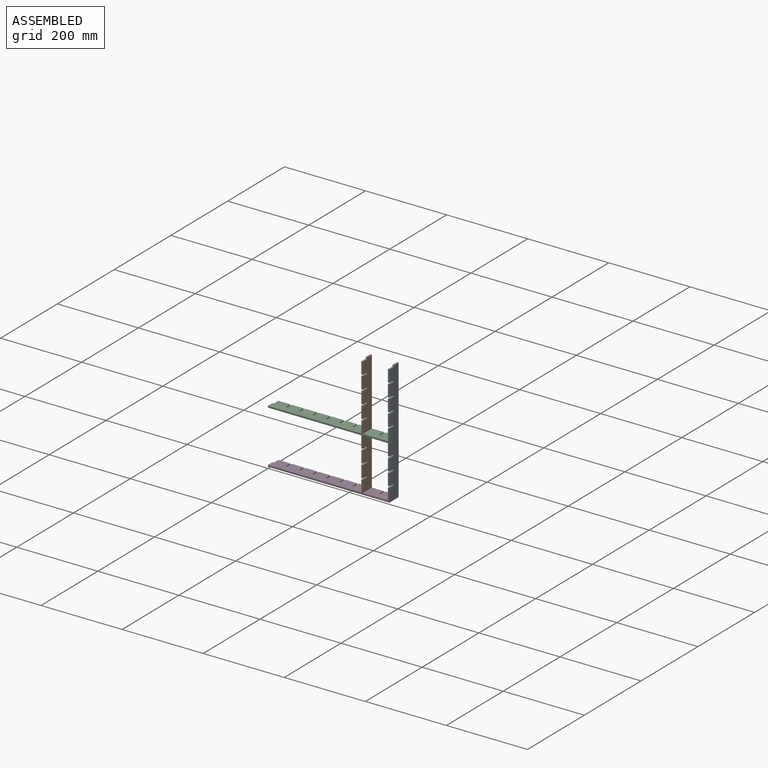
[diagram: assembled view]
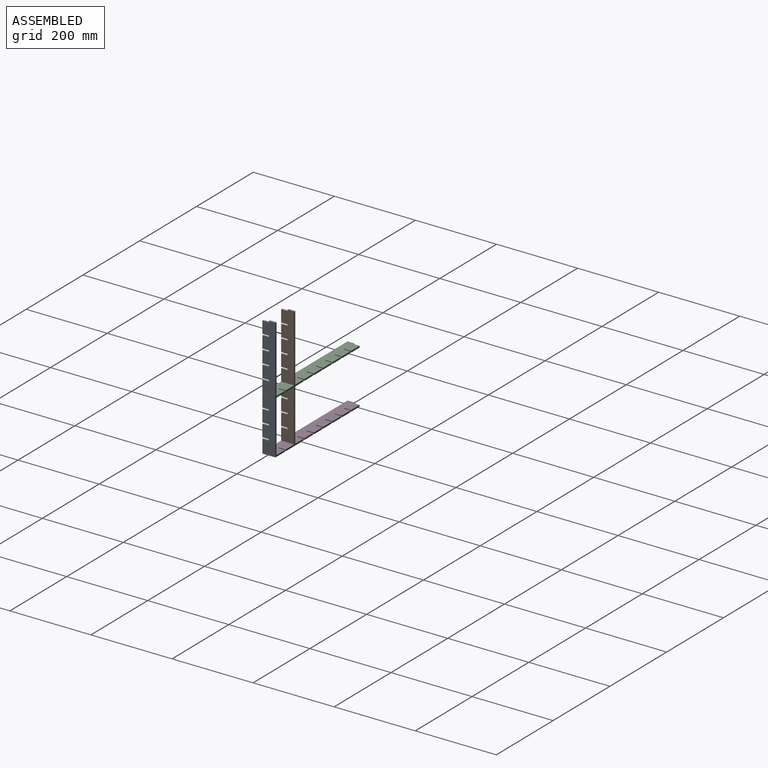
[diagram: assembled view, second angle]
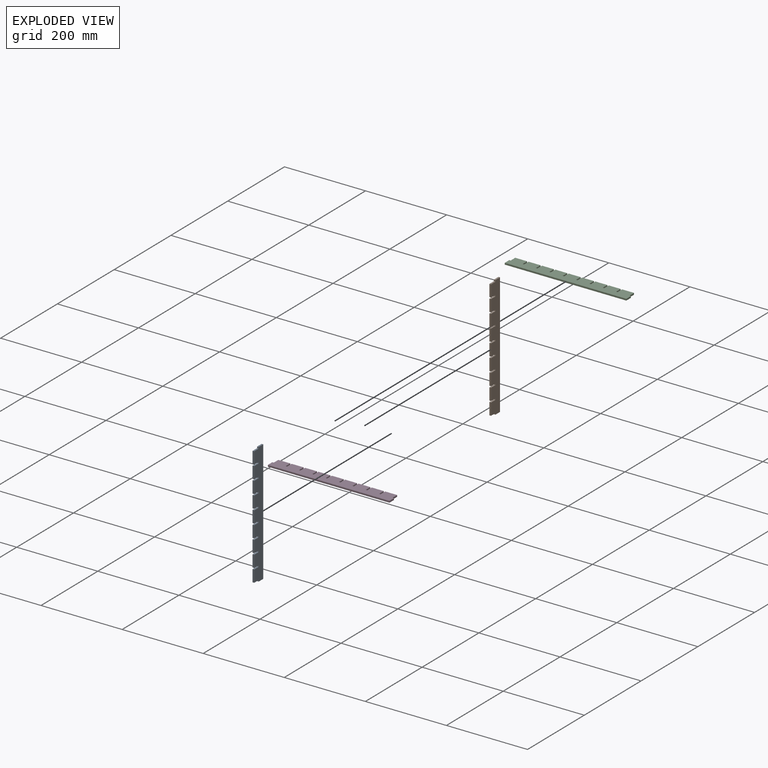
[diagram: exploded view]
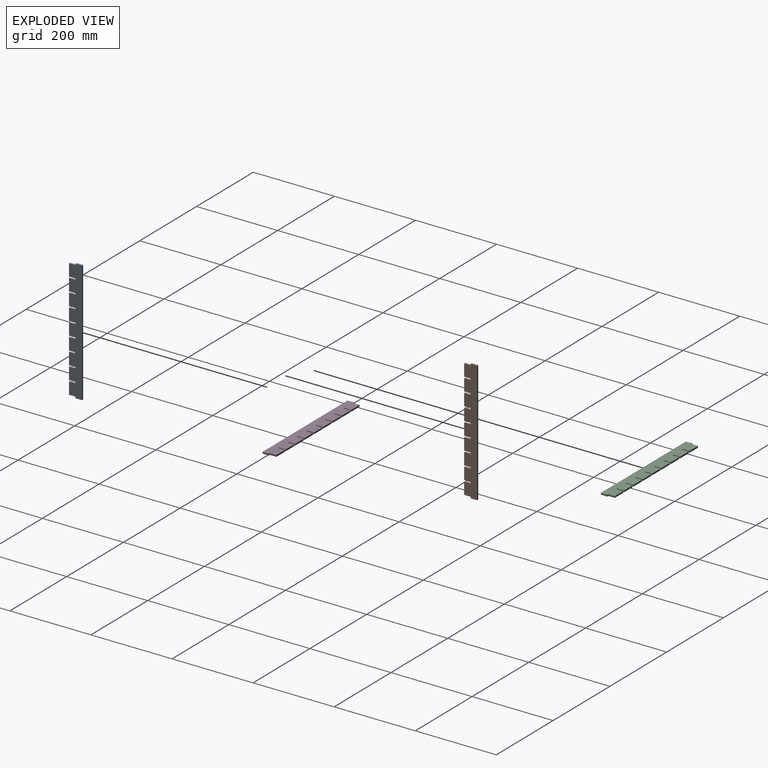
[diagram: exploded view, second angle]
ASSEMBLY  parts=4 mates=3
PART A: 42 faces, bbox 300x32x4 mm
  f0: plane 4x3.5mm, normal (0,1,0), area 14mm2, adj f1,f39,f40,f41
  f1: plane 16x4mm, normal (-1,0,0), area 64mm2, adj f0,f2,f40,f41
  f2: plane 300x4mm, normal (0,-1,0), area 1200mm2, adj f1,f3,f40,f41
  f3: plane 16x4mm, normal (1,0,0), area 64mm2, adj f2,f4,f40,f41
  f4: plane 4x3.5mm, normal (0,1,0), area 14mm2, adj f3,f5,f40,f41
  f5: plane 16x4mm, normal (1,0,0), area 64mm2, adj f4,f6,f40,f41
  f6: plane 29.44x4mm, normal (0,1,0), area 117.8mm2, adj f5,f7,f40,f41
  f7: plane 16x4mm, normal (-1,0,0), area 64mm2, adj f6,f8,f40,f41
  f8: plane 4x3.5mm, normal (0,1,0), area 14mm2, adj f7,f9,f40,f41
  f9: plane 16x4mm, normal (1,0,0), area 64mm2, adj f8,f10,f40,f41
  f10: plane 29.44x4mm, normal (0,1,0), area 117.8mm2, adj f9,f11,f40,f41
  f11: plane 16x4mm, normal (-1,0,0), area 64mm2, adj f10,f12,f40,f41
  f12: plane 4x3.5mm, normal (0,1,0), area 14mm2, adj f11,f13,f40,f41
  f13: plane 16x4mm, normal (1,0,0), area 64mm2, adj f12,f14,f40,f41
  f14: plane 29.44x4mm, normal (0,1,0), area 117.8mm2, adj f13,f15,f40,f41
  f15: plane 16x4mm, normal (-1,0,0), area 64mm2, adj f14,f16,f40,f41
  f16: plane 4x3.5mm, normal (0,1,0), area 14mm2, adj f15,f17,f40,f41
  f17: plane 16x4mm, normal (1,0,0), area 64mm2, adj f16,f18,f40,f41
  f18: plane 29.44x4mm, normal (0,1,0), area 117.8mm2, adj f17,f19,f40,f41
  f19: plane 16x4mm, normal (-1,0,0), area 64mm2, adj f18,f20,f40,f41
  f20: plane 4x3.5mm, normal (0,1,0), area 14mm2, adj f19,f21,f40,f41
  f21: plane 16x4mm, normal (1,0,0), area 64mm2, adj f20,f22,f40,f41
  f22: plane 29.44x4mm, normal (0,1,0), area 117.8mm2, adj f21,f23,f40,f41
  f23: plane 16x4mm, normal (-1,0,0), area 64mm2, adj f22,f24,f40,f41
  f24: plane 4x3.5mm, normal (0,1,0), area 14mm2, adj f23,f25,f40,f41
  f25: plane 16x4mm, normal (1,0,0), area 64mm2, adj f24,f26,f40,f41
  f26: plane 29.44x4mm, normal (0,1,0), area 117.8mm2, adj f25,f27,f40,f41
  f27: plane 16x4mm, normal (-1,0,0), area 64mm2, adj f26,f28,f40,f41
  f28: plane 4x3.5mm, normal (0,1,0), area 14mm2, adj f27,f29,f40,f41
  f29: plane 16x4mm, normal (1,0,0), area 64mm2, adj f28,f30,f40,f41
  f30: plane 29.44x4mm, normal (0,1,0), area 117.8mm2, adj f29,f31,f40,f41
  f31: plane 16x4mm, normal (-1,0,0), area 64mm2, adj f30,f32,f40,f41
  f32: plane 4x3.5mm, normal (0,1,0), area 14mm2, adj f31,f33,f40,f41
  f33: plane 16x4mm, normal (1,0,0), area 64mm2, adj f32,f34,f40,f41
  f34: plane 29.44x4mm, normal (0,1,0), area 117.8mm2, adj f33,f35,f40,f41
  f35: plane 16x4mm, normal (-1,0,0), area 64mm2, adj f34,f36,f40,f41
  f36: plane 4x3.5mm, normal (0,1,0), area 14mm2, adj f35,f37,f40,f41
  f37: plane 16x4mm, normal (1,0,0), area 64mm2, adj f36,f38,f40,f41
  f38: plane 29.44x4mm, normal (0,1,0), area 117.8mm2, adj f37,f39,f40,f41
  f39: plane 16x4mm, normal (-1,0,0), area 64mm2, adj f0,f38,f40,f41
  f40: plane 300x32mm, normal (0,0,1), area 9040mm2, adj f0,f1,f2,f3,f4,f5,f6,f7
  f41: plane 300x32mm, normal (0,0,-1), area 9040mm2, adj f0,f1,f2,f3,f4,f5,f6,f7
PART B: same geometry as A
PART C: same geometry as A
PART D: same geometry as A
PLACE A rot(axis=(0.71,0,-0.71),180deg) t=(303.08,26.96,163.68)mm
PLACE B rot(axis=(0.71,0,-0.71),180deg) t=(237.19,26.96,163.68)mm
PLACE C t=(2.83,-5.04,-4.79)mm fixed
PLACE D rot(axis=(0,1,0),180deg) t=(302.83,-5.04,-132.57)mm
MATE fastened A.f4 <-> D.f0  axis (0,-1,0) through (301.08,10.96,-134.57)mm
MATE fastened C.f4 <-> A.f20  axis (0,1,0) through (301.08,10.96,-2.79)mm
MATE fastened C.f12 <-> B.f20  axis (0,1,0) through (235.19,10.96,-2.79)mm
